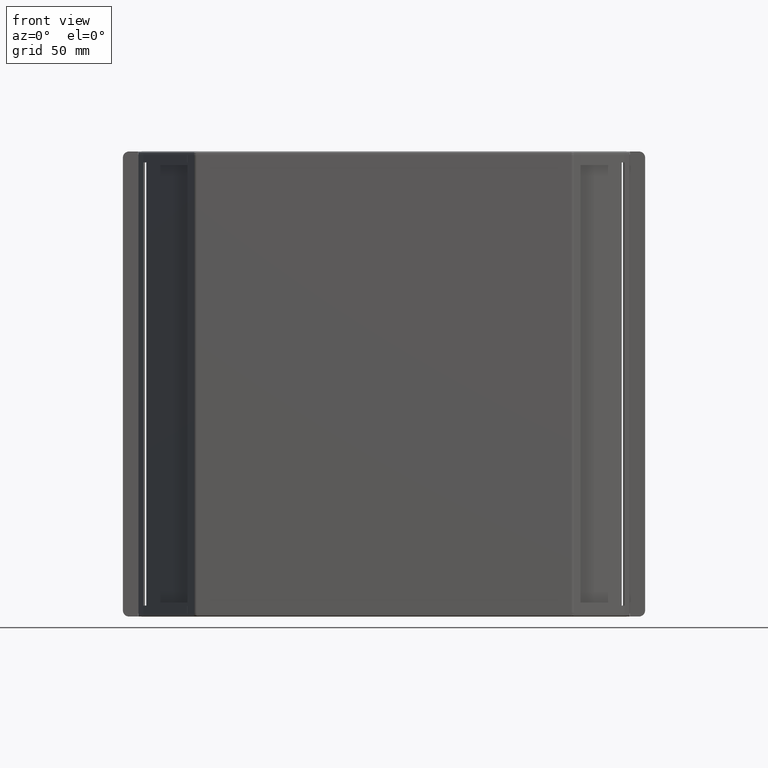
[diagram: clean part render]
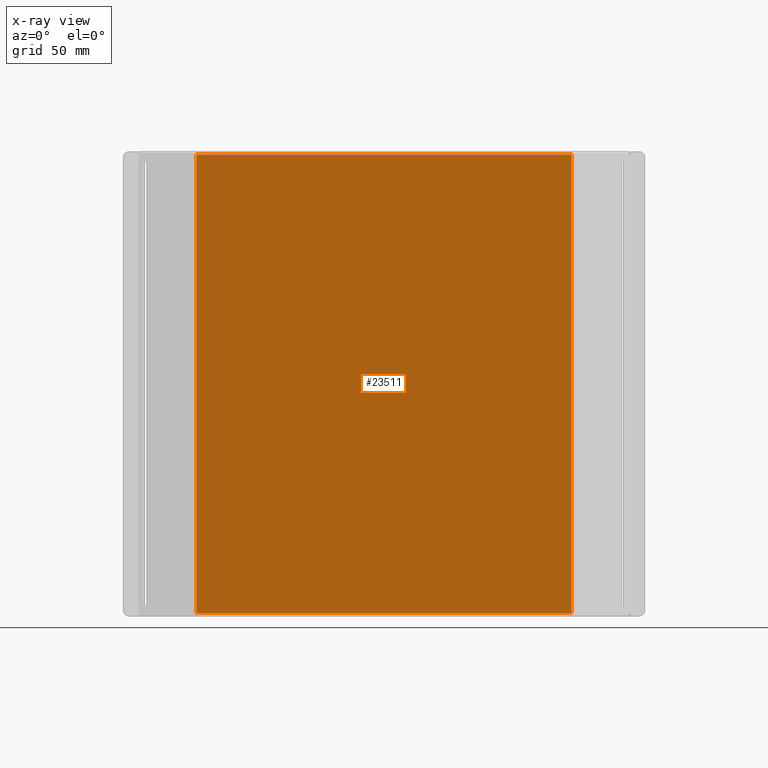
[diagram: x-ray — body ghosted, one internal face saturated and labeled with its STEP entity id]
A machine part, front view, then the same camera in x-ray: the body is ghosted and one INTERNAL B-rep face — a face not visible from any outside direction — is saturated and labeled: STEP entity #23511.
In plain terms, the highlighted planar face has unit normal (0, -1, 0).
Its self-contained STEP definition (entity closure, byte-faithful):
#1491=PLANE('',#24860);
#1934=FACE_OUTER_BOUND('',#3249,.T.);
#3249=EDGE_LOOP('',(#14849,#14850,#14851,#14852));
#4637=LINE('',#32270,#6533);
#4639=LINE('',#32274,#6535);
#4640=LINE('',#32276,#6536);
#4641=LINE('',#32277,#6537);
#6533=VECTOR('',#26727,10.);
#6535=VECTOR('',#26731,10.);
#6536=VECTOR('',#26732,10.);
#6537=VECTOR('',#26733,10.);
#9083=VERTEX_POINT('',#32267);
#9084=VERTEX_POINT('',#32269);
#9085=VERTEX_POINT('',#32273);
#9086=VERTEX_POINT('',#32275);
#11341=EDGE_CURVE('',#9084,#9083,#4637,.T.);
#11343=EDGE_CURVE('',#9085,#9083,#4639,.T.);
#11344=EDGE_CURVE('',#9086,#9085,#4640,.T.);
#11345=EDGE_CURVE('',#9084,#9086,#4641,.T.);
#14849=ORIENTED_EDGE('',*,*,#11343,.F.);
#14850=ORIENTED_EDGE('',*,*,#11344,.F.);
#14851=ORIENTED_EDGE('',*,*,#11345,.F.);
#14852=ORIENTED_EDGE('',*,*,#11341,.T.);
#23511=ADVANCED_FACE('',(#1934),#1491,.T.);
#24860=AXIS2_PLACEMENT_3D('',#32272,#26729,#26730);
#26727=DIRECTION('',(0.,0.,-1.));
#26729=DIRECTION('center_axis',(0.,-1.,0.));
#26730=DIRECTION('ref_axis',(0.,0.,-1.));
#26731=DIRECTION('',(-1.,0.,0.));
#26732=DIRECTION('',(0.,0.,-1.));
#26733=DIRECTION('',(1.,0.,0.));
#32267=CARTESIAN_POINT('',(-120.905970215453,67.2699997079927,1.99999999999999));
#32269=CARTESIAN_POINT('',(-120.905970215453,67.2699997079927,297.9));
#32270=CARTESIAN_POINT('',(-120.905970215453,67.2699997079927,149.95));
#32272=CARTESIAN_POINT('Origin',(120.90597035677,67.2699997079927,149.95));
#32273=CARTESIAN_POINT('',(120.90597035677,67.2699997079927,1.99999999999999));
#32274=CARTESIAN_POINT('',(60.4529850913748,67.2699997079927,1.99999999999999));
#32275=CARTESIAN_POINT('',(120.90597035677,67.2699997079927,297.9));
#32276=CARTESIAN_POINT('',(120.90597035677,67.2699997079927,149.95));
#32277=CARTESIAN_POINT('',(60.4529850913748,67.2699997079927,297.9));